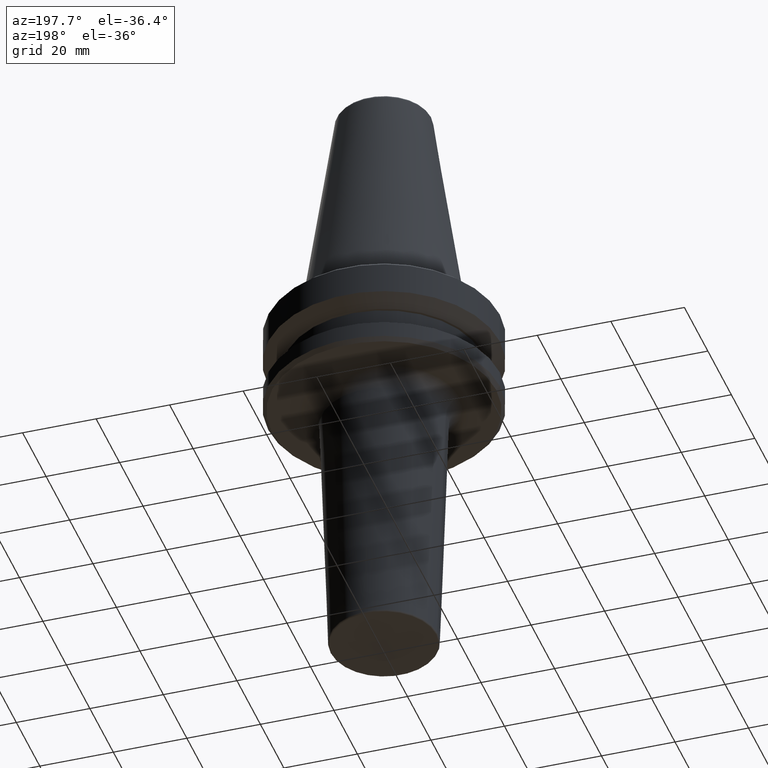
[diagram: clean part render]
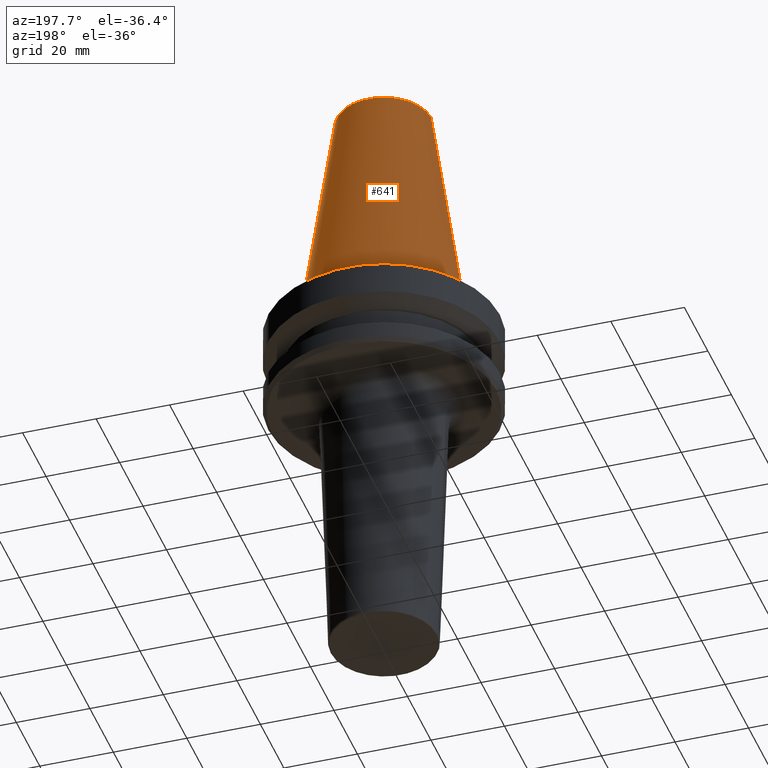
[diagram: same view with one face highlighted and labeled with its STEP entity id]
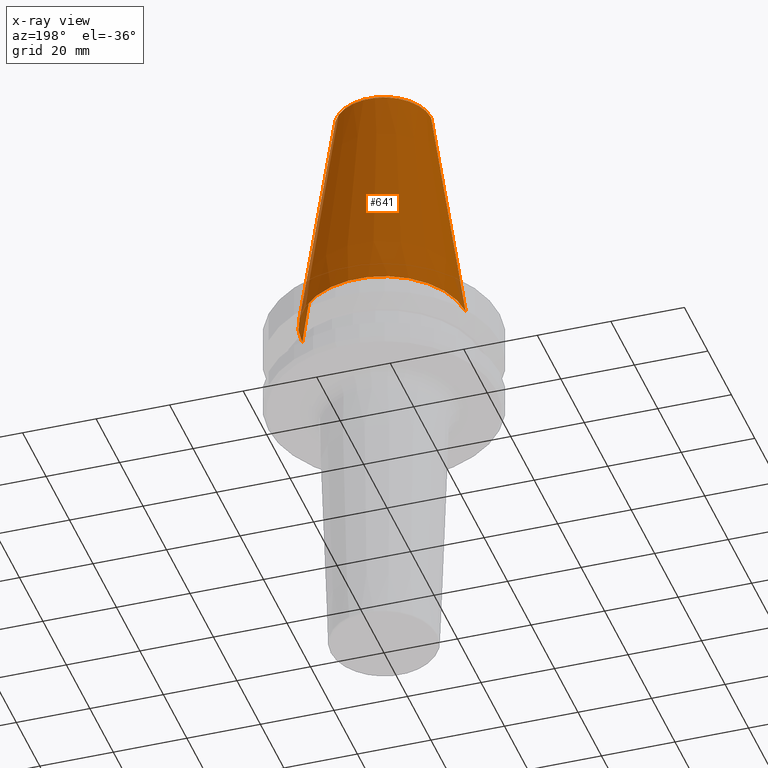
[diagram: x-ray of the same camera — body ghosted, the highlighted face saturated]
A machine part, auxiliary view. The second image highlights one B-rep face of the part: STEP entity #641.
The next image is the same camera in x-ray: the body ghosted, the highlighted face saturated — about 2% of this face is hidden behind the body in this view.
In plain terms, the highlighted conical surface has half-angle 8.297 deg.
Its self-contained STEP definition (entity closure, byte-faithful):
#33 = DIRECTION ( 'NONE',  ( 1.000000000000000000, 0.0000000000000000000, 0.0000000000000000000 ) ) ;
#43 = CARTESIAN_POINT ( 'NONE',  ( -12.81220206925736900, 0.0000000000000000000, -0.8556918111122247000 ) ) ;
#62 = EDGE_LOOP ( 'NONE', ( #786, #251, #891, #655 ) ) ;
#80 = AXIS2_PLACEMENT_3D ( 'NONE', #250, #361, #620 ) ;
#96 = VERTEX_POINT ( 'NONE', #943 ) ;
#103 = EDGE_CURVE ( 'NONE', #990, #754, #673, .T. ) ;
#175 = EDGE_CURVE ( 'NONE', #96, #990, #619, .T. ) ;
#180 = CARTESIAN_POINT ( 'NONE',  ( 22.22499999999993700, 0.0000000000000000000, -65.40000000000057400 ) ) ;
#195 = AXIS2_PLACEMENT_3D ( 'NONE', #929, #445, #691 ) ;
#223 = EDGE_CURVE ( 'NONE', #829, #754, #1024, .T. ) ;
#242 = EDGE_CURVE ( 'NONE', #96, #829, #572, .T. ) ;
#250 = CARTESIAN_POINT ( 'NONE',  ( 0.0000000000000000000, 0.0000000000000000000, -0.8556918111122247000 ) ) ;
#251 = ORIENTED_EDGE ( 'NONE', *, *, #242, .T. ) ;
#252 = VECTOR ( 'NONE', #689, 1000.000000000000000 ) ;
#302 = AXIS2_PLACEMENT_3D ( 'NONE', #1005, #522, #33 ) ;
#358 = CARTESIAN_POINT ( 'NONE',  ( 12.81220206925736900, 1.569042225414513200E-015, -0.8556918111122247000 ) ) ;
#361 = DIRECTION ( 'NONE',  ( -0.0000000000000000000, -0.0000000000000000000, 1.000000000000000000 ) ) ;
#445 = DIRECTION ( 'NONE',  ( 0.0000000000000000000, 0.0000000000000000000, -1.000000000000000000 ) ) ;
#522 = DIRECTION ( 'NONE',  ( -0.0000000000000000000, -0.0000000000000000000, 1.000000000000000000 ) ) ;
#572 = LINE ( 'NONE', #358, #607 ) ;
#598 = DIRECTION ( 'NONE',  ( 0.1443081888881795900, 1.767265616126607700E-017, -0.9895327920891826600 ) ) ;
#607 = VECTOR ( 'NONE', #598, 1000.000000000000000 ) ;
#619 = CIRCLE ( 'NONE', #80, 12.81220206925736900 ) ;
#620 = DIRECTION ( 'NONE',  ( 1.000000000000000000, 0.0000000000000000000, 0.0000000000000000000 ) ) ;
#636 = CONICAL_SURFACE ( 'NONE', #195, 12.81220206925736900, 0.1448138077623198300 ) ;
#641 = ADVANCED_FACE ( 'NONE', ( #663 ), #636, .T. ) ;
#651 = CARTESIAN_POINT ( 'NONE',  ( -22.22499999999993700, 2.721777511104985000E-015, -65.40000000000057400 ) ) ;
#655 = ORIENTED_EDGE ( 'NONE', *, *, #103, .F. ) ;
#663 = FACE_OUTER_BOUND ( 'NONE', #62, .T. ) ;
#673 = LINE ( 'NONE', #799, #252 ) ;
#689 = DIRECTION ( 'NONE',  ( -0.1443081888881795900, 0.0000000000000000000, -0.9895327920891826600 ) ) ;
#691 = DIRECTION ( 'NONE',  ( -1.000000000000000000, 0.0000000000000000000, 0.0000000000000000000 ) ) ;
#754 = VERTEX_POINT ( 'NONE', #651 ) ;
#786 = ORIENTED_EDGE ( 'NONE', *, *, #175, .F. ) ;
#799 = CARTESIAN_POINT ( 'NONE',  ( -12.81220206925736900, 0.0000000000000000000, -0.8556918111122247000 ) ) ;
#829 = VERTEX_POINT ( 'NONE', #180 ) ;
#891 = ORIENTED_EDGE ( 'NONE', *, *, #223, .T. ) ;
#929 = CARTESIAN_POINT ( 'NONE',  ( 0.0000000000000000000, 0.0000000000000000000, -0.8556918111122247000 ) ) ;
#943 = CARTESIAN_POINT ( 'NONE',  ( 12.81220206925736900, 2.145409868259749100E-015, -0.8556918111122247000 ) ) ;
#990 = VERTEX_POINT ( 'NONE', #43 ) ;
#1005 = CARTESIAN_POINT ( 'NONE',  ( 0.0000000000000000000, 0.0000000000000000000, -65.40000000000057400 ) ) ;
#1024 = CIRCLE ( 'NONE', #302, 22.22499999999993700 ) ;